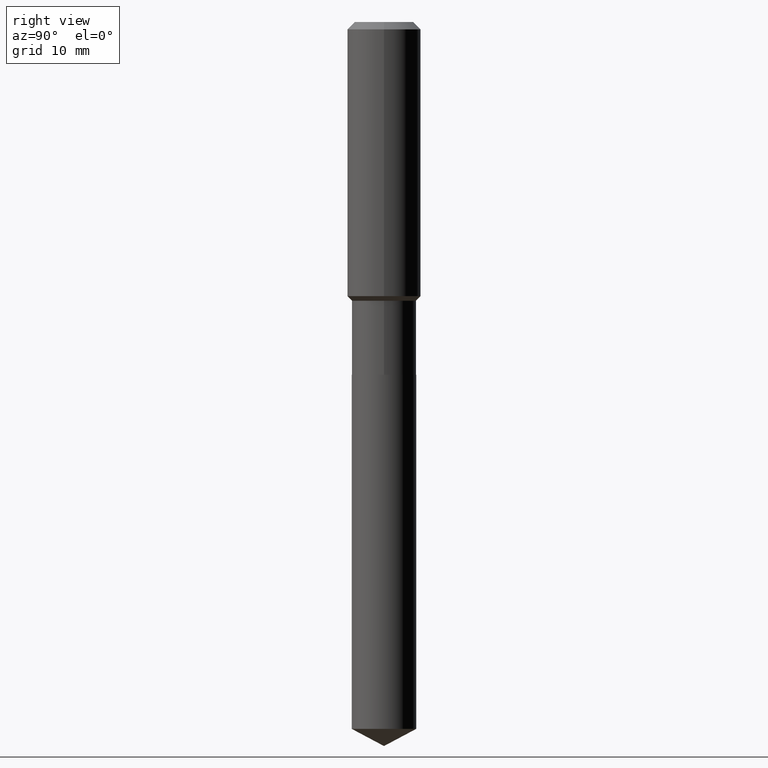
[diagram: clean part render]
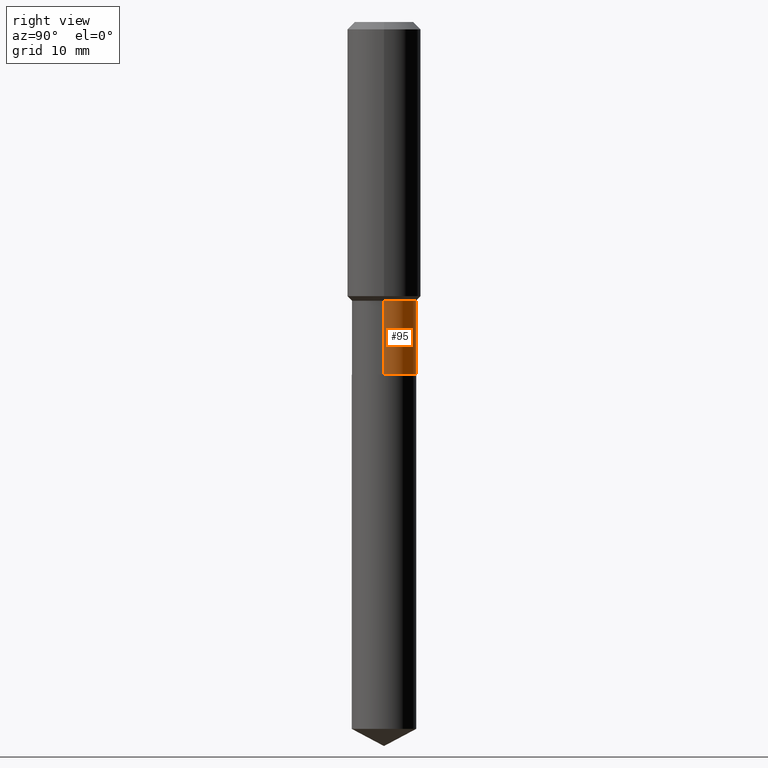
[diagram: same view with one face highlighted and labeled with its STEP entity id]
A machine part, right view. The second image highlights one B-rep face of the part: STEP entity #95.
In plain terms, the highlighted cylindrical surface (edge-blend (fillet) strip) has radius 5.2502 mm, axis along (-0, 0, 1).
Its self-contained STEP definition (entity closure, byte-faithful):
#13 = CARTESIAN_POINT ( 'NONE',  ( 0.2066999999999999671, -1.443378385477751018E-15, 1.007905739557019780E-29 ) ) ;
#19 = ORIENTED_EDGE ( 'NONE', *, *, #399, .T. ) ;
#38 = CARTESIAN_POINT ( 'NONE',  ( 0.000000000000000000, 0.000000000000000000, 0.000000000000000000 ) ) ;
#56 = DIRECTION ( 'NONE',  ( -2.445468806185136597E-29, 3.491481338843145583E-15, 1.000000000000000000 ) ) ;
#73 = EDGE_CURVE ( 'NONE', #415, #105, #298, .T. ) ;
#95 = ADVANCED_FACE ( 'NONE', ( #227 ), #229, .T. ) ;
#100 = DIRECTION ( 'NONE',  ( 1.000000000000000000, -6.982962677686264344E-15, 0.000000000000000000 ) ) ;
#103 = CARTESIAN_POINT ( 'NONE',  ( 0.2066999999999999393, -7.687543611864829727E-15, -1.788399999999999324 ) ) ;
#105 = VERTEX_POINT ( 'NONE', #451 ) ;
#119 = CARTESIAN_POINT ( 'NONE',  ( 5.534829549038819808E-29, -7.902269714203691232E-15, -2.263300000000000090 ) ) ;
#129 = AXIS2_PLACEMENT_3D ( 'NONE', #38, #348, #199 ) ;
#130 = DIRECTION ( 'NONE',  ( -2.445468806185136877E-29, 3.491481338843145188E-15, 1.000000000000000000 ) ) ;
#160 = DIRECTION ( 'NONE',  ( 1.000000000000000000, -6.982962677686269866E-15, 0.000000000000000000 ) ) ;
#163 = AXIS2_PLACEMENT_3D ( 'NONE', #119, #223, #160 ) ;
#176 = LINE ( 'NONE', #13, #336 ) ;
#185 = VECTOR ( 'NONE', #271, 39.37007874015748143 ) ;
#199 = DIRECTION ( 'NONE',  ( 1.000000000000000000, -6.982962677686266711E-15, 4.876176775795935793E-29 ) ) ;
#218 = ORIENTED_EDGE ( 'NONE', *, *, #73, .T. ) ;
#222 = CARTESIAN_POINT ( 'NONE',  ( 0.2067000000000000226, -9.345648099681442448E-15, -2.263300000000000090 ) ) ;
#223 = DIRECTION ( 'NONE',  ( -2.445468806185136597E-29, 3.491481338843145583E-15, 1.000000000000000000 ) ) ;
#227 = FACE_OUTER_BOUND ( 'NONE', #446, .T. ) ;
#229 = CYLINDRICAL_SURFACE ( 'NONE', #129, 0.2066999999999999671 ) ;
#241 = EDGE_CURVE ( 'NONE', #415, #449, #176, .T. ) ;
#243 = CARTESIAN_POINT ( 'NONE',  ( -0.2066999999999999393, -5.604525635479257824E-15, -1.788399999999999324 ) ) ;
#258 = VERTEX_POINT ( 'NONE', #243 ) ;
#271 = DIRECTION ( 'NONE',  ( -2.445468806185136877E-29, 3.491481338843145188E-15, 1.000000000000000000 ) ) ;
#291 = ORIENTED_EDGE ( 'NONE', *, *, #349, .F. ) ;
#298 = CIRCLE ( 'NONE', #163, 0.2067000000000000226 ) ;
#303 = CARTESIAN_POINT ( 'NONE',  ( -0.2066999999999999671, 1.468691834816126850E-15, -1.016743883155689005E-29 ) ) ;
#306 = LINE ( 'NONE', #303, #185 ) ;
#310 = ORIENTED_EDGE ( 'NONE', *, *, #241, .F. ) ;
#336 = VECTOR ( 'NONE', #130, 39.37007874015748143 ) ;
#348 = DIRECTION ( 'NONE',  ( -2.445468806185136597E-29, 3.491481338843145583E-15, 1.000000000000000000 ) ) ;
#349 = EDGE_CURVE ( 'NONE', #449, #258, #392, .T. ) ;
#385 = AXIS2_PLACEMENT_3D ( 'NONE', #438, #56, #100 ) ;
#392 = CIRCLE ( 'NONE', #385, 0.2066999999999999393 ) ;
#399 = EDGE_CURVE ( 'NONE', #105, #258, #306, .T. ) ;
#415 = VERTEX_POINT ( 'NONE', #222 ) ;
#438 = CARTESIAN_POINT ( 'NONE',  ( 4.373476412981496355E-29, -6.244165226387079301E-15, -1.788399999999999324 ) ) ;
#446 = EDGE_LOOP ( 'NONE', ( #218, #19, #291, #310 ) ) ;
#449 = VERTEX_POINT ( 'NONE', #103 ) ;
#451 = CARTESIAN_POINT ( 'NONE',  ( -0.2067000000000000226, -5.604525635479257035E-15, -2.263300000000000090 ) ) ;